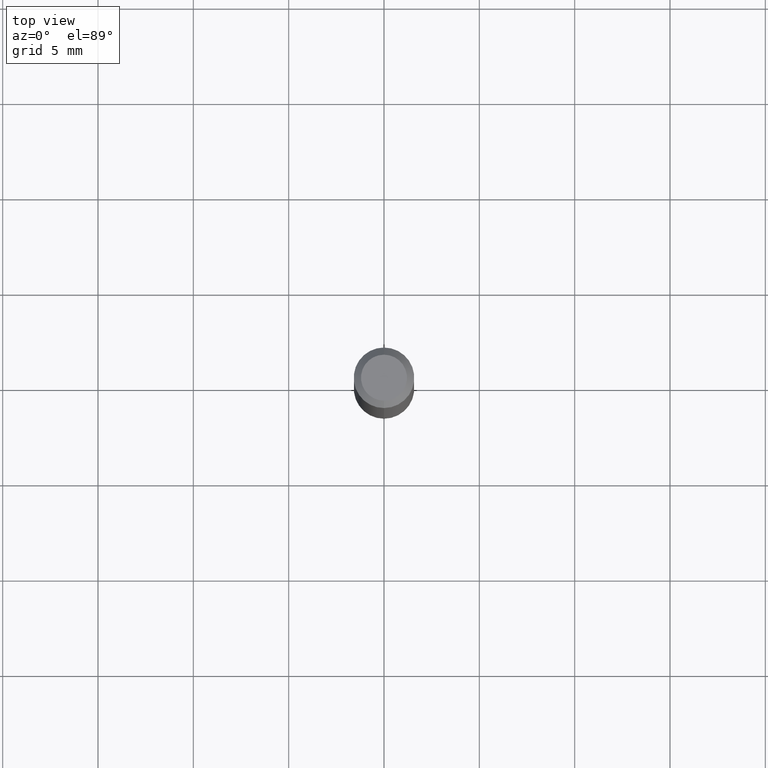
[diagram: clean part render]
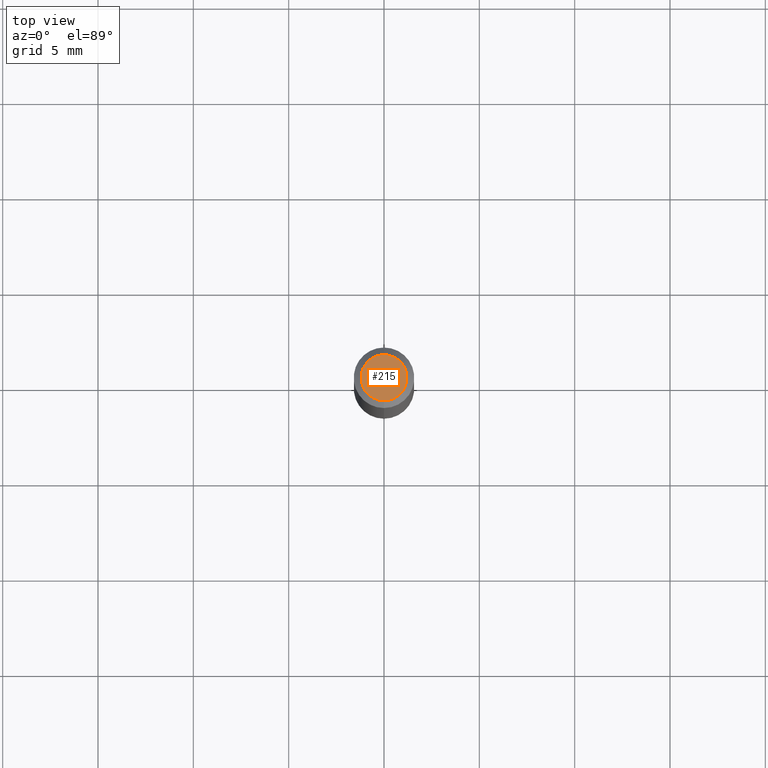
[diagram: same view with one face highlighted and labeled with its STEP entity id]
A machine part, top view. The second image highlights one B-rep face of the part: STEP entity #215.
In plain terms, the highlighted planar face has unit normal (0, -0, -1).
Its self-contained STEP definition (entity closure, byte-faithful):
#6 = EDGE_CURVE ( 'NONE', #331, #274, #177, .T. ) ;
#20 = EDGE_LOOP ( 'NONE', ( #381, #106 ) ) ;
#24 = PLANE ( 'NONE',  #432 ) ;
#29 = CARTESIAN_POINT ( 'NONE',  ( 3.840629472727447874E-16, 0.04750000000000000749, 1.073394357713768884E-16 ) ) ;
#63 = CARTESIAN_POINT ( 'NONE',  ( -3.773273898774340269E-16, -0.04750000000000000749, 4.390353615536545300E-16 ) ) ;
#83 = DIRECTION ( 'NONE',  ( -6.982962677686265133E-15, -1.000000000000000000, 3.491536060866079986E-15 ) ) ;
#93 = AXIS2_PLACEMENT_3D ( 'NONE', #374, #136, #271 ) ;
#106 = ORIENTED_EDGE ( 'NONE', *, *, #198, .T. ) ;
#136 = DIRECTION ( 'NONE',  ( -2.445430594000756604E-29, 3.491536060866079986E-15, 1.000000000000000000 ) ) ;
#177 = CIRCLE ( 'NONE', #411, 0.04750000000000000749 ) ;
#198 = EDGE_CURVE ( 'NONE', #274, #331, #332, .T. ) ;
#204 = CARTESIAN_POINT ( 'NONE',  ( -6.680608225847972664E-45, 9.538436538043716084E-31, 2.731873986625157031E-16 ) ) ;
#215 = ADVANCED_FACE ( 'NONE', ( #425 ), #24, .F. ) ;
#271 = DIRECTION ( 'NONE',  ( -6.982962677686265133E-15, -1.000000000000000000, 3.491536060866079986E-15 ) ) ;
#274 = VERTEX_POINT ( 'NONE', #63 ) ;
#284 = DIRECTION ( 'NONE',  ( -2.445430594000756604E-29, 3.491536060866079986E-15, 1.000000000000000000 ) ) ;
#308 = DIRECTION ( 'NONE',  ( 6.982962677686265922E-15, 1.000000000000000000, -3.491536060866079986E-15 ) ) ;
#331 = VERTEX_POINT ( 'NONE', #29 ) ;
#332 = CIRCLE ( 'NONE', #93, 0.04750000000000000749 ) ;
#352 = DIRECTION ( 'NONE',  ( 2.445430594000756323E-29, -3.491536060866079986E-15, -1.000000000000000000 ) ) ;
#374 = CARTESIAN_POINT ( 'NONE',  ( -6.680608225847972664E-45, 9.538436538043716084E-31, 2.731873986625157031E-16 ) ) ;
#381 = ORIENTED_EDGE ( 'NONE', *, *, #6, .T. ) ;
#411 = AXIS2_PLACEMENT_3D ( 'NONE', #204, #284, #83 ) ;
#425 = FACE_OUTER_BOUND ( 'NONE', #20, .T. ) ;
#432 = AXIS2_PLACEMENT_3D ( 'NONE', #494, #352, #308 ) ;
#494 = CARTESIAN_POINT ( 'NONE',  ( 3.316907271900976589E-16, 0.04750000000000000749, -2.925426355988096927E-17 ) ) ;